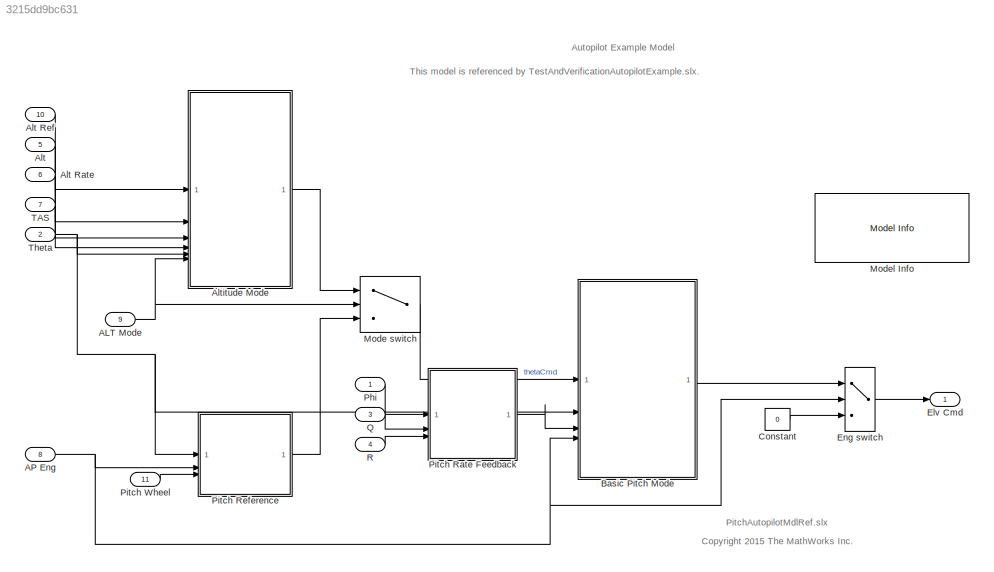
MODEL slx_3215dd9bc631
KIND model
CONFIG AbsTol = auto
CONFIG EnableMultiTasking = off
CONFIG FixedStep = 1/40
CONFIG MaxStep = auto
CONFIG MinStep = auto
CONFIG RelTol = 1e-3
CONFIG SampleTimeConstraint = Unconstrained
CONFIG SolverName = FixedStepDiscrete
CONFIG StartTime = 0.0
CONFIG StopTime = 25
WORKSPACE source: mxarray member
WORKSPACE dispGain: Simulink.Parameter (value not decoded)
WORKSPACE intGain: Simulink.Parameter (value not decoded)
WORKSPACE rateGain: Simulink.Parameter (value not decoded)
BLOCK [Inport] ALT Mode
  Interpolate = off
  OutDataTypeStr = boolean
  Port = 9
  PortDimensions = 1
  SampleTime = 1/40
BLOCK [Inport] AP Eng
  Interpolate = off
  OutDataTypeStr = boolean
  Port = 8
  PortDimensions = 1
  SampleTime = 1/40
BLOCK [Inport] Alt
  Interpolate = off
  OutDataTypeStr = double
  Port = 5
  PortDimensions = 1
  SampleTime = 1/40
  SignalType = real
BLOCK [Inport] Alt Rate
  Interpolate = off
  OutDataTypeStr = double
  Port = 6
  PortDimensions = 1
  SampleTime = 1/40
  SignalType = real
BLOCK [Inport] Alt Ref
  Interpolate = off
  OutDataTypeStr = double
  Port = 10
  PortDimensions = 1
  SampleTime = 1/40
  SignalType = real
BLOCK [ModelReference] Altitude Mode
  ModelNameDialog = AltitudeModeAutopilotMdlRef
  ModelReferenceVersion = 14.0
BLOCK [ModelReference] Basic Pitch Mode
  ModelNameDialog = AttitudeControllerAutopilotMdlRef
  ModelReferenceVersion = 8.0
  UsingDefaultArgumentValue = 0,0,0,0,0,0,0
BLOCK [Constant] Constant
  OutDataTypeStr = double
  Value = 0
BLOCK [Outport] Elv Cmd
  OutDataTypeStr = double
  PortDimensions = 1
  SampleTime = 1/40
  SignalType = real
BLOCK [Switch] Eng switch
  Criteria = u2 ~= 0
  InputSameDT = off
  SaturateOnIntegerOverflow = off
BLOCK [Switch] Mode switch
  Criteria = u2 ~= 0
  InputSameDT = off
  SaturateOnIntegerOverflow = off
BLOCK [Reference] Model Info  REF=simulink/Model-Wide
Utilities/Model Info
  SourceBlock = simulink/Model-Wide\nUtilities/Model Info
  SourceType = CMBlock
BLOCK [Inport] Phi
  Interpolate = off
  OutDataTypeStr = double
  PortDimensions = 1
  SampleTime = 1/40
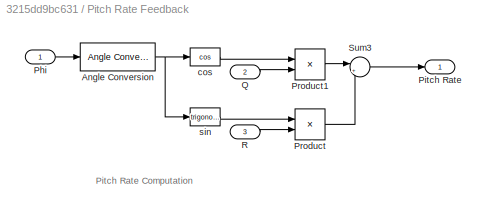
BLOCK [SubSystem] Pitch Rate Feedback
  RTWSystemCode = Inline
  TreatAsAtomicUnit = on
BLOCK [Reference] Pitch Rate Feedback/Angle Conversion  REF=aerolibconvert2/Angle Conversion
  SourceBlock = aerolibconvert2/Angle Conversion
  SourceType = Angle Conversion
BLOCK [Inport] Pitch Rate Feedback/Phi
BLOCK [Outport] Pitch Rate Feedback/Pitch Rate
BLOCK [Product] Pitch Rate Feedback/Product
  RndMeth = Zero
BLOCK [Product] Pitch Rate Feedback/Product1
  RndMeth = Zero
BLOCK [Inport] Pitch Rate Feedback/Q
  Port = 2
BLOCK [Inport] Pitch Rate Feedback/R
  Port = 3
BLOCK [Sum] Pitch Rate Feedback/Sum3
  Inputs = |++
BLOCK [Trigonometry] Pitch Rate Feedback/cos
  ApproximationMethod = CORDIC
  Operator = cos
  OutputSignalType = real
BLOCK [Trigonometry] Pitch Rate Feedback/sin
  ApproximationMethod = CORDIC
  OutputSignalType = real
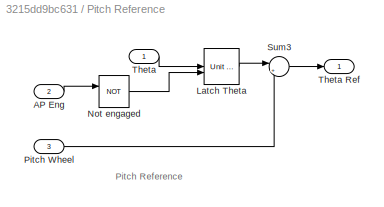
BLOCK [SubSystem] Pitch Reference
  RTWSystemCode = Inline
  TreatAsAtomicUnit = on
BLOCK [Inport] Pitch Reference/AP Eng
  Port = 2
BLOCK [Reference] Pitch Reference/Latch Theta  REF=simulink_need_slupdate/Unit Delay
Enabled
  SourceBlock = simulink_need_slupdate/Unit Delay\nEnabled
  SourceType = Unit Delay Enabled
BLOCK [Logic] Pitch Reference/Not engaged
  AllPortsSameDT = off
  IconShape = distinctive
  Operator = NOT
  OutDataTypeStr = boolean
BLOCK [Inport] Pitch Reference/Pitch Wheel
  Port = 3
BLOCK [Sum] Pitch Reference/Sum3
  Inputs = |++
BLOCK [Inport] Pitch Reference/Theta
BLOCK [Outport] Pitch Reference/Theta Ref
BLOCK [Inport] Pitch Wheel 
  Interpolate = off
  OutDataTypeStr = double
  Port = 11
  PortDimensions = 1
  SampleTime = 1/40
  SignalType = real
BLOCK [Inport] Q
  Interpolate = off
  OutDataTypeStr = double
  Port = 3
  PortDimensions = 1
  SampleTime = 1/40
  SignalType = real
BLOCK [Inport] R
  Interpolate = off
  OutDataTypeStr = double
  Port = 4
  PortDimensions = 1
  SampleTime = 1/40
  SignalType = real
BLOCK [Inport] TAS
  Interpolate = off
  OutDataTypeStr = double
  Port = 7
  PortDimensions = 1
  SampleTime = 1/40
  SignalType = real
BLOCK [Inport] Theta
  Interpolate = off
  OutDataTypeStr = double
  Port = 2
  PortDimensions = 1
  SampleTime = 1/40
  SignalType = real
ANNOTATION (root): This model is referenced by TestAndVerificationAutopilotExample.slx.
ANNOTATION (root): Autopilot Example Model
ANNOTATION (root): <copyright redacted>
ANNOTATION (root): PitchAutopilotMdlRef.slx
ANNOTATION Pitch Rate Feedback: Pitch Rate Computation
ANNOTATION Pitch Reference: Pitch Reference
NET ALT Mode:1 -> Altitude Mode:6, Mode switch:2
NET AP Eng:1 -> Basic Pitch Mode:4, Eng switch:2, Pitch Reference:2
LINE Alt Rate:1 -> Altitude Mode:3
LINE Alt Ref:1 -> Altitude Mode:1
LINE Alt:1 -> Altitude Mode:2
LINE Altitude Mode:1 -> Mode switch:1
LINE Basic Pitch Mode:1 -> Eng switch:1
LINE Constant:1 -> Eng switch:3
LINE Eng switch:1 -> Elv Cmd:1
LINE Mode switch:1 -> Basic Pitch Mode:1
LINE Phi:1 -> Pitch Rate Feedback:1
NET Pitch Rate Feedback/Angle Conversion:1 -> Pitch Rate Feedback/cos:1, Pitch Rate Feedback/sin:1
LINE Pitch Rate Feedback/Phi:1 -> Pitch Rate Feedback/Angle Conversion:1
LINE Pitch Rate Feedback/Product1:1 -> Pitch Rate Feedback/Sum3:1
LINE Pitch Rate Feedback/Product:1 -> Pitch Rate Feedback/Sum3:2
LINE Pitch Rate Feedback/Q:1 -> Pitch Rate Feedback/Product1:2
LINE Pitch Rate Feedback/R:1 -> Pitch Rate Feedback/Product:2
LINE Pitch Rate Feedback/Sum3:1 -> Pitch Rate Feedback/Pitch Rate:1
LINE Pitch Rate Feedback/cos:1 -> Pitch Rate Feedback/Product1:1
LINE Pitch Rate Feedback/sin:1 -> Pitch Rate Feedback/Product:1
LINE Pitch Rate Feedback:1 -> Basic Pitch Mode:3
LINE Pitch Reference/AP Eng:1 -> Pitch Reference/Not engaged:1
LINE Pitch Reference/Latch Theta:1 -> Pitch Reference/Sum3:1
LINE Pitch Reference/Not engaged:1 -> Pitch Reference/Latch Theta:2
LINE Pitch Reference/Pitch Wheel:1 -> Pitch Reference/Sum3:2
LINE Pitch Reference/Sum3:1 -> Pitch Reference/Theta Ref:1
LINE Pitch Reference/Theta:1 -> Pitch Reference/Latch Theta:1
LINE Pitch Reference:1 -> Mode switch:3
LINE Pitch Wheel :1 -> Pitch Reference:3
LINE Q:1 -> Pitch Rate Feedback:2
LINE R:1 -> Pitch Rate Feedback:3
LINE TAS:1 -> Altitude Mode:4
NET Theta:1 -> Altitude Mode:5, Basic Pitch Mode:2, Pitch Reference:1
note: NET lines group one-source signal fan-out (src -> all destinations, sorted); 1:1 wires keep LINE
